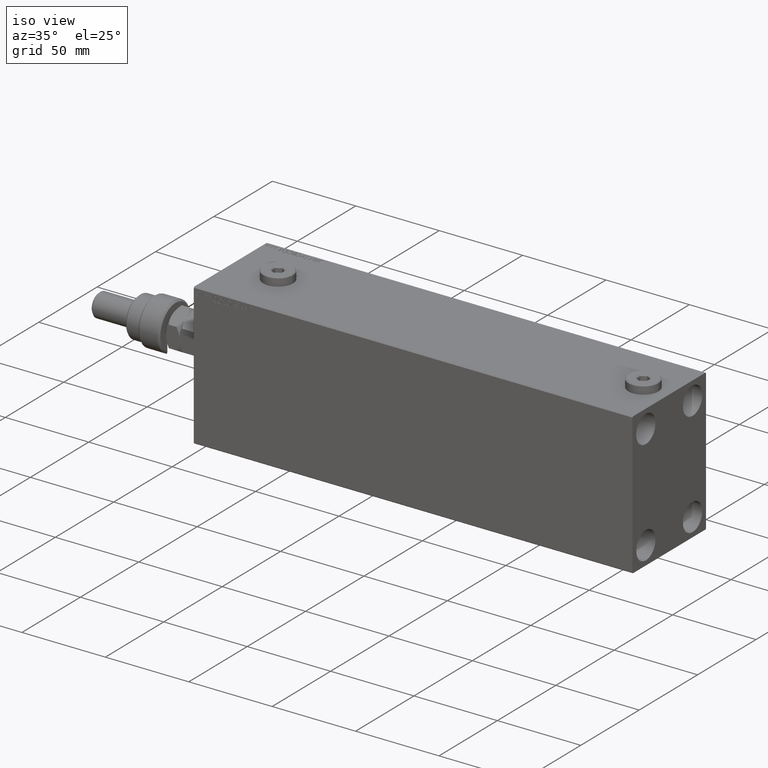
[diagram: clean part render]
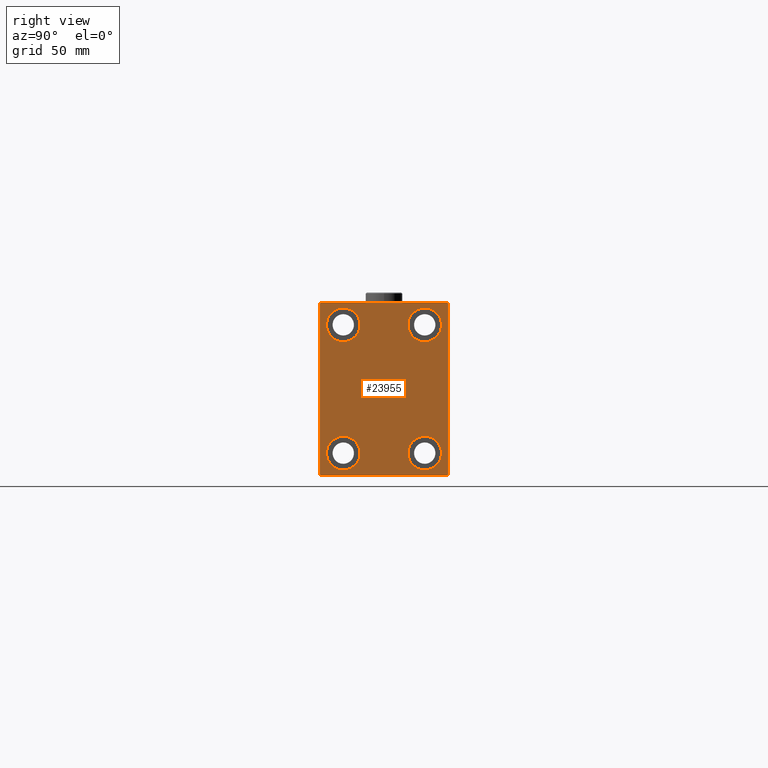
[diagram: tour spotlight — one face highlighted and labeled with its STEP entity id]
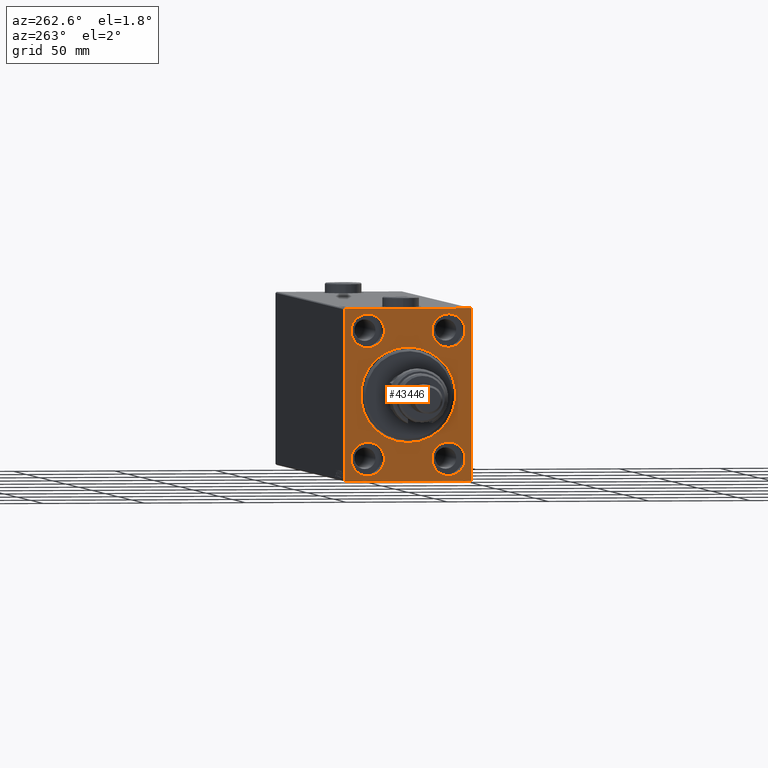
[diagram: tour spotlight — one face highlighted and labeled with its STEP entity id]
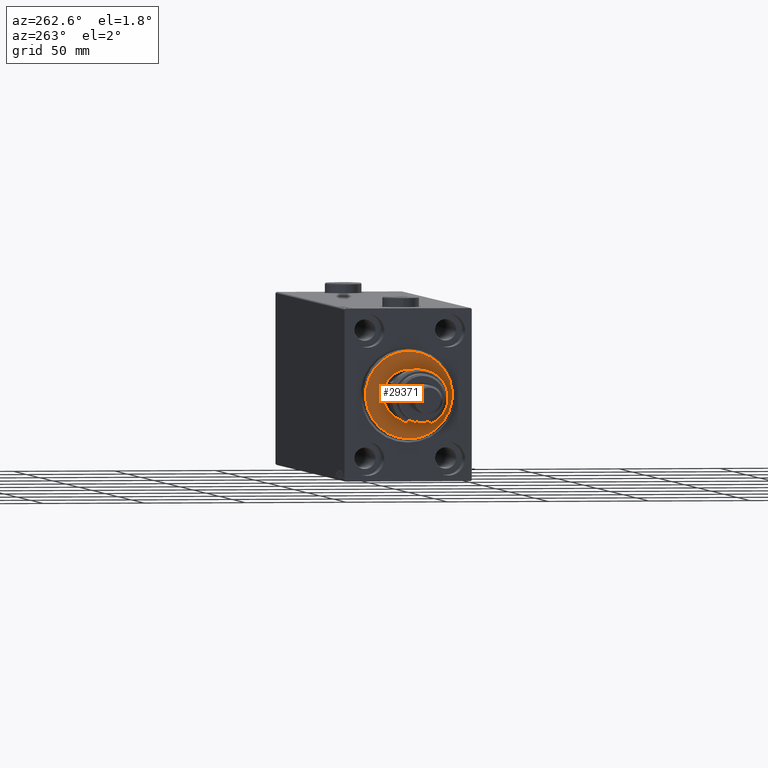
[diagram: tour spotlight — one face highlighted and labeled with its STEP entity id]
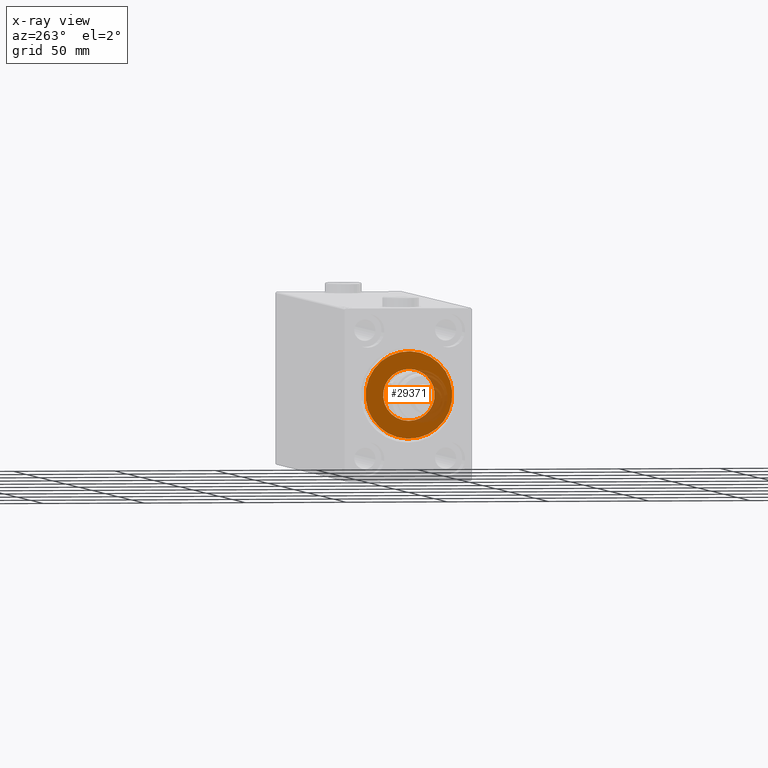
[diagram: x-ray of the same camera — body ghosted, this tour face saturated]
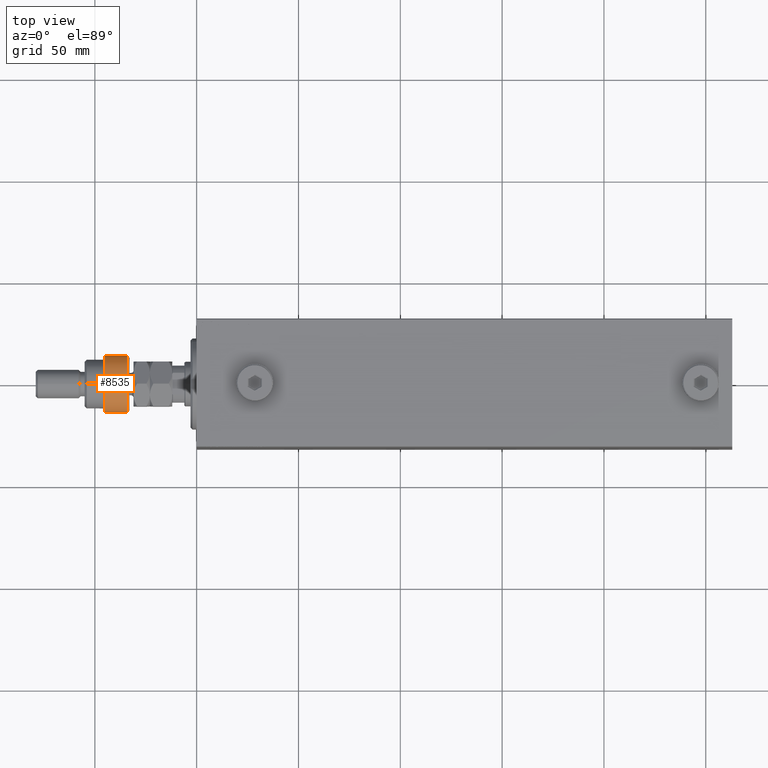
[diagram: tour spotlight — one face highlighted and labeled with its STEP entity id]
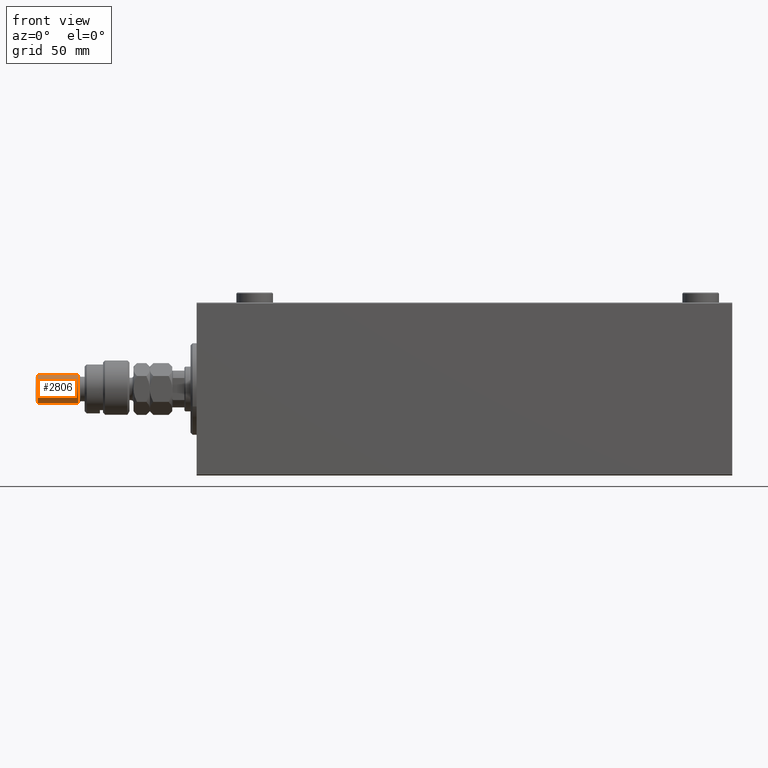
[diagram: tour spotlight — one face highlighted and labeled with its STEP entity id]
A machine part: a face-by-face anatomy tour. The part has 1001 B-rep faces; the first image is the clean iso view, then the 5 largest visible faces are spotlighted one at a time (largest first), each with its STEP entity span.

Face 1 — right view, entity #23955. In plain terms, the highlighted planar face has unit normal (1, 0, 0).
Definition (entity closure, byte-faithful):
#426 = CARTESIAN_POINT ( 'NONE',  ( 263.0000000000000000, 31.50000000000000000, 41.99999999999995737 ) ) ;
#983 = VERTEX_POINT ( 'NONE', #34597 ) ;
#1020 = CARTESIAN_POINT ( 'NONE',  ( 263.0000000000000000, -36.74999999999997868, 36.74999999999997868 ) ) ;
#1212 = EDGE_LOOP ( 'NONE', ( #25419, #22390, #8946, #7647, #27612, #31968, #35069, #8096 ) ) ;
#1508 = CARTESIAN_POINT ( 'NONE',  ( 263.0000000000000000, -19.99999999999999645, 39.74999999999999289 ) ) ;
#1774 = EDGE_CURVE ( 'NONE', #17631, #29334, #37343, .T. ) ;
#2107 = CIRCLE ( 'NONE', #46324, 8.250000000000000000 ) ;
#2212 = EDGE_CURVE ( 'NONE', #9146, #20336, #2107, .T. ) ;
#2669 = FACE_OUTER_BOUND ( 'NONE', #1212, .T. ) ;
#2895 = FACE_BOUND ( 'NONE', #35542, .T. ) ;
#3213 = VERTEX_POINT ( 'NONE', #17056 ) ;
#3452 = CARTESIAN_POINT ( 'NONE',  ( 263.0000000000000000, 36.74999999999910472, 36.75000000000114397 ) ) ;
#3723 = DIRECTION ( 'NONE',  ( 0.000000000000000000, 0.000000000000000000, 1.000000000000000000 ) ) ;
#7647 = ORIENTED_EDGE ( 'NONE', *, *, #31792, .T. ) ;
#8096 = ORIENTED_EDGE ( 'NONE', *, *, #17058, .T. ) ;
#8528 = DIRECTION ( 'NONE',  ( 0.000000000000000000, -0.7071067811865474617, -0.7071067811865474617 ) ) ;
#8946 = ORIENTED_EDGE ( 'NONE', *, *, #35526, .T. ) ;
#9146 = VERTEX_POINT ( 'NONE', #31957 ) ;
#9332 = DIRECTION ( 'NONE',  ( 0.000000000000000000, 0.000000000000000000, 1.000000000000000000 ) ) ;
#9524 = AXIS2_PLACEMENT_3D ( 'NONE', #29409, #22123, #32819 ) ;
#9651 = CARTESIAN_POINT ( 'NONE',  ( 263.0000000000000000, -19.99999999999999645, 23.25000000000000355 ) ) ;
#10174 = DIRECTION ( 'NONE',  ( 0.000000000000000000, 0.000000000000000000, -1.000000000000000000 ) ) ;
#10267 = DIRECTION ( 'NONE',  ( -0.000000000000000000, 0.7071067811865474617, -0.7071067811865474617 ) ) ;
#10368 = CIRCLE ( 'NONE', #37496, 8.250000000000000000 ) ;
#10537 = DIRECTION ( 'NONE',  ( -1.000000000000000000, -0.000000000000000000, -0.000000000000000000 ) ) ;
#10654 = DIRECTION ( 'NONE',  ( 1.000000000000000000, 0.000000000000000000, 0.000000000000000000 ) ) ;
#11142 = AXIS2_PLACEMENT_3D ( 'NONE', #47008, #39228, #17584 ) ;
#11256 = CARTESIAN_POINT ( 'NONE',  ( 263.0000000000000000, 31.50000000000000000, 42.50000000000000711 ) ) ;
#11830 = CIRCLE ( 'NONE', #9524, 8.250000000000000000 ) ;
#11898 = LINE ( 'NONE', #26707, #32967 ) ;
#11997 = EDGE_CURVE ( 'NONE', #20336, #9146, #10368, .T. ) ;
#12528 = VECTOR ( 'NONE', #33165, 1000.000000000000000 ) ;
#13317 = EDGE_CURVE ( 'NONE', #46708, #983, #47681, .T. ) ;
#13582 = FACE_BOUND ( 'NONE', #46640, .T. ) ;
#13658 = VECTOR ( 'NONE', #43212, 1000.000000000000000 ) ;
#13977 = VERTEX_POINT ( 'NONE', #17517 ) ;
#14176 = LINE ( 'NONE', #11256, #29211 ) ;
#14288 = FACE_BOUND ( 'NONE', #40293, .T. ) ;
#14528 = CARTESIAN_POINT ( 'NONE',  ( 263.0000000000000000, 20.00000000000000355, 23.25000000000000355 ) ) ;
#14598 = CARTESIAN_POINT ( 'NONE',  ( 263.0000000000000000, -30.99999999999997158, 42.49999999999999289 ) ) ;
#14660 = DIRECTION ( 'NONE',  ( 0.000000000000000000, -1.000000000000000000, -2.202823461557850341E-16 ) ) ;
#14907 = AXIS2_PLACEMENT_3D ( 'NONE', #21456, #43827, #3723 ) ;
#14926 = LINE ( 'NONE', #25617, #12528 ) ;
#14970 = ORIENTED_EDGE ( 'NONE', *, *, #43496, .T. ) ;
#15145 = EDGE_CURVE ( 'NONE', #29334, #30830, #11898, .T. ) ;
#15237 = DIRECTION ( 'NONE',  ( -0.000000000000000000, 0.7071067811865474617, 0.7071067811865474617 ) ) ;
#15331 = ORIENTED_EDGE ( 'NONE', *, *, #47267, .T. ) ;
#15737 = CARTESIAN_POINT ( 'NONE',  ( 263.0000000000000000, -20.00000000000000355, -31.49999999999999289 ) ) ;
#16152 = DIRECTION ( 'NONE',  ( 0.000000000000000000, 1.000000000000000000, 0.000000000000000000 ) ) ;
#16355 = DIRECTION ( 'NONE',  ( -1.000000000000000000, -0.000000000000000000, -0.000000000000000000 ) ) ;
#16540 = EDGE_CURVE ( 'NONE', #32261, #17631, #23445, .T. ) ;
#16963 = VERTEX_POINT ( 'NONE', #47668 ) ;
#17056 = CARTESIAN_POINT ( 'NONE',  ( 263.0000000000000000, -31.50000000000000000, -41.99999999999997868 ) ) ;
#17058 = EDGE_CURVE ( 'NONE', #30830, #13977, #36711, .T. ) ;
#17469 = FACE_BOUND ( 'NONE', #42993, .T. ) ;
#17517 = CARTESIAN_POINT ( 'NONE',  ( 263.0000000000000000, 30.99999999999991473, 42.50000000000000711 ) ) ;
#17584 = DIRECTION ( 'NONE',  ( 0.000000000000000000, 0.000000000000000000, 1.000000000000000000 ) ) ;
#17631 = VERTEX_POINT ( 'NONE', #46177 ) ;
#18427 = CIRCLE ( 'NONE', #39397, 8.250000000000000000 ) ;
#18524 = EDGE_CURVE ( 'NONE', #13977, #47546, #14176, .T. ) ;
#18885 = CARTESIAN_POINT ( 'NONE',  ( 263.0000000000000000, 36.74999999999999289, -36.74999999999999289 ) ) ;
#19897 = ORIENTED_EDGE ( 'NONE', *, *, #22242, .T. ) ;
#20292 = CARTESIAN_POINT ( 'NONE',  ( 263.0000000000000000, -31.50000000000000000, -42.50000000000000711 ) ) ;
#20336 = VERTEX_POINT ( 'NONE', #27640 ) ;
#21117 = PLANE ( 'NONE',  #27721 ) ;
#21456 = CARTESIAN_POINT ( 'NONE',  ( 263.0000000000000000, 20.00000000000000355, 31.50000000000000000 ) ) ;
#21675 = LINE ( 'NONE', #47682, #24080 ) ;
#21699 = ORIENTED_EDGE ( 'NONE', *, *, #13317, .T. ) ;
#22123 = DIRECTION ( 'NONE',  ( -1.000000000000000000, -0.000000000000000000, -0.000000000000000000 ) ) ;
#22242 = EDGE_CURVE ( 'NONE', #16963, #30138, #18427, .T. ) ;
#22390 = ORIENTED_EDGE ( 'NONE', *, *, #31846, .T. ) ;
#22878 = ORIENTED_EDGE ( 'NONE', *, *, #44688, .T. ) ;
#23445 = LINE ( 'NONE', #20292, #42346 ) ;
#23532 = DIRECTION ( 'NONE',  ( 0.000000000000000000, 0.000000000000000000, 1.000000000000000000 ) ) ;
#23791 = VECTOR ( 'NONE', #15237, 1000.000000000000114 ) ;
#23955 = ADVANCED_FACE ( 'NONE', ( #17469, #13582, #14288, #2895, #2669 ), #21117, .T. ) ;
#24080 = VECTOR ( 'NONE', #10267, 1000.000000000000114 ) ;
#24277 = VERTEX_POINT ( 'NONE', #9651 ) ;
#24389 = CARTESIAN_POINT ( 'NONE',  ( 263.0000000000000000, 19.99999999999999645, -31.49999999999999289 ) ) ;
#25419 = ORIENTED_EDGE ( 'NONE', *, *, #18524, .T. ) ;
#25617 = CARTESIAN_POINT ( 'NONE',  ( 263.0000000000000000, -31.50000000000000000, 42.49999999999999289 ) ) ;
#25953 = AXIS2_PLACEMENT_3D ( 'NONE', #34467, #42012, #23532 ) ;
#26466 = DIRECTION ( 'NONE',  ( 0.000000000000000000, -1.632680918566406300E-16, 1.000000000000000000 ) ) ;
#26707 = CARTESIAN_POINT ( 'NONE',  ( 263.0000000000000000, 31.50000000000001421, -42.50000000000000711 ) ) ;
#26780 = ORIENTED_EDGE ( 'NONE', *, *, #40908, .T. ) ;
#27612 = ORIENTED_EDGE ( 'NONE', *, *, #16540, .T. ) ;
#27640 = CARTESIAN_POINT ( 'NONE',  ( 263.0000000000000000, -20.00000000000000355, -39.74999999999999289 ) ) ;
#27721 = AXIS2_PLACEMENT_3D ( 'NONE', #46891, #10654, #10174 ) ;
#29211 = VECTOR ( 'NONE', #14660, 1000.000000000000000 ) ;
#29334 = VERTEX_POINT ( 'NONE', #40149 ) ;
#29409 = CARTESIAN_POINT ( 'NONE',  ( 263.0000000000000000, 19.99999999999999645, -31.49999999999999289 ) ) ;
#29921 = CARTESIAN_POINT ( 'NONE',  ( 263.0000000000000000, -31.50000000000000000, 41.99999999999996447 ) ) ;
#30138 = VERTEX_POINT ( 'NONE', #44272 ) ;
#30830 = VERTEX_POINT ( 'NONE', #426 ) ;
#31177 = VERTEX_POINT ( 'NONE', #1508 ) ;
#31792 = EDGE_CURVE ( 'NONE', #3213, #32261, #21675, .T. ) ;
#31846 = EDGE_CURVE ( 'NONE', #47546, #42777, #45481, .T. ) ;
#31917 = DIRECTION ( 'NONE',  ( 0.000000000000000000, 0.000000000000000000, 1.000000000000000000 ) ) ;
#31957 = CARTESIAN_POINT ( 'NONE',  ( 263.0000000000000000, -20.00000000000000355, -23.24999999999999289 ) ) ;
#31968 = ORIENTED_EDGE ( 'NONE', *, *, #1774, .T. ) ;
#32261 = VERTEX_POINT ( 'NONE', #35612 ) ;
#32819 = DIRECTION ( 'NONE',  ( 0.000000000000000000, 0.000000000000000000, 1.000000000000000000 ) ) ;
#32879 = CARTESIAN_POINT ( 'NONE',  ( 263.0000000000000000, -20.00000000000000355, -31.49999999999999289 ) ) ;
#32967 = VECTOR ( 'NONE', #26466, 1000.000000000000000 ) ;
#33165 = DIRECTION ( 'NONE',  ( 0.000000000000000000, 0.000000000000000000, -1.000000000000000000 ) ) ;
#34467 = CARTESIAN_POINT ( 'NONE',  ( 263.0000000000000000, 20.00000000000000355, 31.50000000000000000 ) ) ;
#34597 = CARTESIAN_POINT ( 'NONE',  ( 263.0000000000000000, 20.00000000000000355, 39.74999999999999289 ) ) ;
#34840 = DIRECTION ( 'NONE',  ( -1.000000000000000000, -0.000000000000000000, -0.000000000000000000 ) ) ;
#34944 = DIRECTION ( 'NONE',  ( -1.000000000000000000, -0.000000000000000000, -0.000000000000000000 ) ) ;
#35069 = ORIENTED_EDGE ( 'NONE', *, *, #15145, .T. ) ;
#35526 = EDGE_CURVE ( 'NONE', #42777, #3213, #14926, .T. ) ;
#35542 = EDGE_LOOP ( 'NONE', ( #35613, #40701 ) ) ;
#35612 = CARTESIAN_POINT ( 'NONE',  ( 263.0000000000000000, -30.99999999999997158, -42.50000000000000711 ) ) ;
#35613 = ORIENTED_EDGE ( 'NONE', *, *, #11997, .T. ) ;
#36711 = LINE ( 'NONE', #3452, #13658 ) ;
#37343 = LINE ( 'NONE', #18885, #23791 ) ;
#37379 = CIRCLE ( 'NONE', #14907, 8.249999999999992895 ) ;
#37424 = CIRCLE ( 'NONE', #47542, 8.249999999999992895 ) ;
#37496 = AXIS2_PLACEMENT_3D ( 'NONE', #15737, #34944, #41758 ) ;
#39228 = DIRECTION ( 'NONE',  ( -1.000000000000000000, -0.000000000000000000, -0.000000000000000000 ) ) ;
#39397 = AXIS2_PLACEMENT_3D ( 'NONE', #24389, #34840, #9332 ) ;
#40149 = CARTESIAN_POINT ( 'NONE',  ( 263.0000000000000000, 31.50000000000001421, -41.99999999999997868 ) ) ;
#40293 = EDGE_LOOP ( 'NONE', ( #21699, #14970 ) ) ;
#40701 = ORIENTED_EDGE ( 'NONE', *, *, #2212, .T. ) ;
#40908 = EDGE_CURVE ( 'NONE', #24277, #31177, #37424, .T. ) ;
#41758 = DIRECTION ( 'NONE',  ( 0.000000000000000000, 0.000000000000000000, 1.000000000000000000 ) ) ;
#41922 = VECTOR ( 'NONE', #8528, 1000.000000000000114 ) ;
#42012 = DIRECTION ( 'NONE',  ( -1.000000000000000000, -0.000000000000000000, -0.000000000000000000 ) ) ;
#42346 = VECTOR ( 'NONE', #16152, 1000.000000000000000 ) ;
#42626 = CARTESIAN_POINT ( 'NONE',  ( 263.0000000000000000, -19.99999999999999645, 31.50000000000000000 ) ) ;
#42777 = VERTEX_POINT ( 'NONE', #29921 ) ;
#42993 = EDGE_LOOP ( 'NONE', ( #19897, #22878 ) ) ;
#43212 = DIRECTION ( 'NONE',  ( -0.000000000000000000, -0.7071067811865671127, 0.7071067811865279218 ) ) ;
#43496 = EDGE_CURVE ( 'NONE', #983, #46708, #37379, .T. ) ;
#43827 = DIRECTION ( 'NONE',  ( -1.000000000000000000, -0.000000000000000000, -0.000000000000000000 ) ) ;
#44272 = CARTESIAN_POINT ( 'NONE',  ( 263.0000000000000000, 19.99999999999999645, -23.24999999999999289 ) ) ;
#44309 = DIRECTION ( 'NONE',  ( 0.000000000000000000, 0.000000000000000000, 1.000000000000000000 ) ) ;
#44688 = EDGE_CURVE ( 'NONE', #30138, #16963, #11830, .T. ) ;
#45481 = LINE ( 'NONE', #1020, #41922 ) ;
#46177 = CARTESIAN_POINT ( 'NONE',  ( 263.0000000000000000, 30.99999999999998579, -42.50000000000000711 ) ) ;
#46324 = AXIS2_PLACEMENT_3D ( 'NONE', #32879, #10537, #44309 ) ;
#46640 = EDGE_LOOP ( 'NONE', ( #26780, #15331 ) ) ;
#46708 = VERTEX_POINT ( 'NONE', #14528 ) ;
#46891 = CARTESIAN_POINT ( 'NONE',  ( 263.0000000000000000, 0.000000000000000000, 0.000000000000000000 ) ) ;
#47008 = CARTESIAN_POINT ( 'NONE',  ( 263.0000000000000000, -19.99999999999999645, 31.50000000000000000 ) ) ;
#47267 = EDGE_CURVE ( 'NONE', #31177, #24277, #47604, .T. ) ;
#47542 = AXIS2_PLACEMENT_3D ( 'NONE', #42626, #16355, #31917 ) ;
#47546 = VERTEX_POINT ( 'NONE', #14598 ) ;
#47604 = CIRCLE ( 'NONE', #11142, 8.249999999999992895 ) ;
#47668 = CARTESIAN_POINT ( 'NONE',  ( 263.0000000000000000, 19.99999999999999645, -39.74999999999999289 ) ) ;
#47681 = CIRCLE ( 'NONE', #25953, 8.249999999999992895 ) ;
#47682 = CARTESIAN_POINT ( 'NONE',  ( 263.0000000000000000, -36.74999999999998579, -36.74999999999998579 ) ) ;

Face 2 — auxiliary view, entity #43446. In plain terms, the highlighted planar face has unit normal (1, 0, 0).
Definition (entity closure, byte-faithful):
#216 = DIRECTION ( 'NONE',  ( -1.000000000000000000, 0.000000000000000000, 0.000000000000000000 ) ) ;
#728 = CARTESIAN_POINT ( 'NONE',  ( 0.000000000000000000, -30.99999999999997158, -42.50000000000000711 ) ) ;
#1513 = CARTESIAN_POINT ( 'NONE',  ( 0.000000000000000000, 31.50000000000000000, 41.99999999999995737 ) ) ;
#1584 = ORIENTED_EDGE ( 'NONE', *, *, #12823, .T. ) ;
#1821 = FACE_BOUND ( 'NONE', #41376, .T. ) ;
#2252 = DIRECTION ( 'NONE',  ( 0.000000000000000000, 0.000000000000000000, 1.000000000000000000 ) ) ;
#2683 = LINE ( 'NONE', #5605, #21486 ) ;
#2719 = CARTESIAN_POINT ( 'NONE',  ( 0.000000000000000000, 19.99999999999999645, -31.49999999999999289 ) ) ;
#2767 = CARTESIAN_POINT ( 'NONE',  ( 0.000000000000000000, -20.00000000000000355, -39.74999999999999289 ) ) ;
#2862 = VERTEX_POINT ( 'NONE', #18836 ) ;
#2901 = CARTESIAN_POINT ( 'NONE',  ( 0.000000000000000000, 19.99999999999999645, -23.24999999999999289 ) ) ;
#3364 = DIRECTION ( 'NONE',  ( 0.000000000000000000, 0.000000000000000000, 1.000000000000000000 ) ) ;
#3571 = DIRECTION ( 'NONE',  ( -1.000000000000000000, 0.000000000000000000, 0.000000000000000000 ) ) ;
#3731 = EDGE_LOOP ( 'NONE', ( #31922, #38038 ) ) ;
#3774 = ORIENTED_EDGE ( 'NONE', *, *, #9885, .T. ) ;
#4006 = DIRECTION ( 'NONE',  ( 1.000000000000000000, 0.000000000000000000, 0.000000000000000000 ) ) ;
#4101 = CIRCLE ( 'NONE', #21917, 8.249999999999992895 ) ;
#4424 = CARTESIAN_POINT ( 'NONE',  ( 0.000000000000000000, -31.50000000000000000, -42.50000000000000711 ) ) ;
#4563 = CARTESIAN_POINT ( 'NONE',  ( 0.000000000000000000, 20.00000000000000355, 31.50000000000000000 ) ) ;
#4576 = CARTESIAN_POINT ( 'NONE',  ( 0.000000000000000000, 19.99999999999999645, -39.74999999999999289 ) ) ;
#4686 = VERTEX_POINT ( 'NONE', #37662 ) ;
#5014 = ORIENTED_EDGE ( 'NONE', *, *, #15645, .T. ) ;
#5307 = DIRECTION ( 'NONE',  ( 0.000000000000000000, -0.7071067811865474617, -0.7071067811865474617 ) ) ;
#5342 = CIRCLE ( 'NONE', #20841, 8.249999999999992895 ) ;
#5540 = CARTESIAN_POINT ( 'NONE',  ( 0.000000000000000000, 31.50000000000001421, -41.99999999999997868 ) ) ;
#5558 = ORIENTED_EDGE ( 'NONE', *, *, #44305, .F. ) ;
#5605 = CARTESIAN_POINT ( 'NONE',  ( 0.000000000000000000, 31.50000000000000000, 42.50000000000000711 ) ) ;
#5695 = DIRECTION ( 'NONE',  ( 1.000000000000000000, 0.000000000000000000, 0.000000000000000000 ) ) ;
#5734 = DIRECTION ( 'NONE',  ( -1.000000000000000000, 0.000000000000000000, 0.000000000000000000 ) ) ;
#6175 = CARTESIAN_POINT ( 'NONE',  ( 0.000000000000000000, -19.99999999999999645, 31.50000000000000000 ) ) ;
#6279 = CARTESIAN_POINT ( 'NONE',  ( 0.000000000000000000, -31.50000000000000000, 41.99999999999996447 ) ) ;
#6343 = ORIENTED_EDGE ( 'NONE', *, *, #34982, .F. ) ;
#6480 = CARTESIAN_POINT ( 'NONE',  ( 0.000000000000000000, -20.00000000000000355, -23.24999999999999289 ) ) ;
#7588 = DIRECTION ( 'NONE',  ( 0.000000000000000000, 1.000000000000000000, 0.000000000000000000 ) ) ;
#7828 = CARTESIAN_POINT ( 'NONE',  ( 0.000000000000000000, 20.00000000000000355, 23.25000000000000355 ) ) ;
#8119 = DIRECTION ( 'NONE',  ( 0.000000000000000000, 0.000000000000000000, 1.000000000000000000 ) ) ;
#8304 = LINE ( 'NONE', #15570, #41186 ) ;
#8801 = CIRCLE ( 'NONE', #46845, 23.50000000000004619 ) ;
#8837 = CARTESIAN_POINT ( 'NONE',  ( 0.000000000000000000, -20.00000000000000355, -31.49999999999999289 ) ) ;
#8849 = FACE_BOUND ( 'NONE', #31256, .T. ) ;
#9000 = DIRECTION ( 'NONE',  ( 0.000000000000000000, -1.000000000000000000, -2.202823461557850341E-16 ) ) ;
#9159 = EDGE_CURVE ( 'NONE', #48012, #13699, #42248, .T. ) ;
#9235 = VERTEX_POINT ( 'NONE', #38439 ) ;
#9487 = AXIS2_PLACEMENT_3D ( 'NONE', #28024, #5695, #28272 ) ;
#9839 = CARTESIAN_POINT ( 'NONE',  ( 0.000000000000000000, -19.99999999999999645, 39.74999999999999289 ) ) ;
#9885 = EDGE_CURVE ( 'NONE', #9235, #26216, #8801, .T. ) ;
#9955 = CARTESIAN_POINT ( 'NONE',  ( 0.000000000000000000, -31.50000000000000000, 41.99999999999996447 ) ) ;
#10266 = ORIENTED_EDGE ( 'NONE', *, *, #46633, .F. ) ;
#11021 = EDGE_CURVE ( 'NONE', #19180, #40441, #42959, .T. ) ;
#11852 = CARTESIAN_POINT ( 'NONE',  ( 0.000000000000000000, 0.000000000000000000, 0.000000000000000000 ) ) ;
#11951 = AXIS2_PLACEMENT_3D ( 'NONE', #35117, #5734, #39496 ) ;
#12823 = EDGE_CURVE ( 'NONE', #36977, #33989, #24129, .T. ) ;
#12971 = CARTESIAN_POINT ( 'NONE',  ( 0.000000000000000000, 30.99999999999991473, 42.50000000000000711 ) ) ;
#13446 = DIRECTION ( 'NONE',  ( -1.000000000000000000, 0.000000000000000000, 0.000000000000000000 ) ) ;
#13699 = VERTEX_POINT ( 'NONE', #2767 ) ;
#14346 = CARTESIAN_POINT ( 'NONE',  ( 0.000000000000000000, -31.50000000000000000, -41.99999999999997868 ) ) ;
#14725 = DIRECTION ( 'NONE',  ( 0.000000000000000000, 0.000000000000000000, 1.000000000000000000 ) ) ;
#14786 = LINE ( 'NONE', #28894, #44207 ) ;
#14879 = AXIS2_PLACEMENT_3D ( 'NONE', #8837, #27040, #8119 ) ;
#15554 = VECTOR ( 'NONE', #7588, 1000.000000000000000 ) ;
#15570 = CARTESIAN_POINT ( 'NONE',  ( 0.000000000000000000, 30.99999999999991473, 42.50000000000000711 ) ) ;
#15645 = EDGE_CURVE ( 'NONE', #4686, #45926, #23991, .T. ) ;
#15701 = CARTESIAN_POINT ( 'NONE',  ( 0.000000000000000000, 30.99999999999998579, -42.50000000000000711 ) ) ;
#18609 = CARTESIAN_POINT ( 'NONE',  ( 0.000000000000000000, -19.99999999999999645, 31.50000000000000000 ) ) ;
#18659 = DIRECTION ( 'NONE',  ( 1.000000000000000000, 0.000000000000000000, 0.000000000000000000 ) ) ;
#18812 = DIRECTION ( 'NONE',  ( 0.000000000000000000, 0.000000000000000000, -1.000000000000000000 ) ) ;
#18836 = CARTESIAN_POINT ( 'NONE',  ( 0.000000000000000000, 20.00000000000000355, 39.74999999999999289 ) ) ;
#19180 = VERTEX_POINT ( 'NONE', #9839 ) ;
#19416 = DIRECTION ( 'NONE',  ( -1.000000000000000000, 0.000000000000000000, 0.000000000000000000 ) ) ;
#19438 = EDGE_LOOP ( 'NONE', ( #10266, #5558 ) ) ;
#19994 = EDGE_CURVE ( 'NONE', #22207, #42794, #2683, .T. ) ;
#20213 = VERTEX_POINT ( 'NONE', #4576 ) ;
#20726 = EDGE_CURVE ( 'NONE', #24749, #42794, #39562, .T. ) ;
#20841 = AXIS2_PLACEMENT_3D ( 'NONE', #6175, #13446, #35559 ) ;
#21135 = CIRCLE ( 'NONE', #36626, 23.50000000000004619 ) ;
#21313 = ORIENTED_EDGE ( 'NONE', *, *, #20726, .T. ) ;
#21486 = VECTOR ( 'NONE', #9000, 1000.000000000000000 ) ;
#21917 = AXIS2_PLACEMENT_3D ( 'NONE', #4563, #216, #44427 ) ;
#22207 = VERTEX_POINT ( 'NONE', #12971 ) ;
#22458 = CARTESIAN_POINT ( 'NONE',  ( 0.000000000000000000, 31.50000000000001421, -42.50000000000000711 ) ) ;
#22461 = CARTESIAN_POINT ( 'NONE',  ( 0.000000000000000000, 0.000000000000000000, 0.000000000000000000 ) ) ;
#23078 = VECTOR ( 'NONE', #34706, 1000.000000000000114 ) ;
#23407 = AXIS2_PLACEMENT_3D ( 'NONE', #30594, #19416, #23545 ) ;
#23545 = DIRECTION ( 'NONE',  ( 0.000000000000000000, 0.000000000000000000, 1.000000000000000000 ) ) ;
#23991 = LINE ( 'NONE', #5540, #38410 ) ;
#24129 = LINE ( 'NONE', #37978, #43022 ) ;
#24749 = VERTEX_POINT ( 'NONE', #9955 ) ;
#24769 = VERTEX_POINT ( 'NONE', #2901 ) ;
#26216 = VERTEX_POINT ( 'NONE', #26622 ) ;
#26622 = CARTESIAN_POINT ( 'NONE',  ( 0.000000000000000000, 0.000000000000000000, 23.50000000000004619 ) ) ;
#27040 = DIRECTION ( 'NONE',  ( -1.000000000000000000, 0.000000000000000000, 0.000000000000000000 ) ) ;
#27296 = FACE_BOUND ( 'NONE', #3731, .T. ) ;
#27326 = EDGE_CURVE ( 'NONE', #40441, #19180, #5342, .T. ) ;
#28024 = CARTESIAN_POINT ( 'NONE',  ( 0.000000000000000000, 0.000000000000000000, 0.000000000000000000 ) ) ;
#28272 = DIRECTION ( 'NONE',  ( 0.000000000000000000, 0.000000000000000000, -1.000000000000000000 ) ) ;
#28826 = CIRCLE ( 'NONE', #23407, 8.250000000000000000 ) ;
#28894 = CARTESIAN_POINT ( 'NONE',  ( 0.000000000000000000, -31.50000000000000000, 42.49999999999999289 ) ) ;
#29096 = DIRECTION ( 'NONE',  ( -1.000000000000000000, 0.000000000000000000, 0.000000000000000000 ) ) ;
#30337 = EDGE_CURVE ( 'NONE', #24749, #33989, #14786, .T. ) ;
#30594 = CARTESIAN_POINT ( 'NONE',  ( 0.000000000000000000, 19.99999999999999645, -31.49999999999999289 ) ) ;
#30832 = EDGE_LOOP ( 'NONE', ( #41978, #3774 ) ) ;
#30888 = DIRECTION ( 'NONE',  ( -0.000000000000000000, 0.7071067811865671127, -0.7071067811865279218 ) ) ;
#31213 = ORIENTED_EDGE ( 'NONE', *, *, #32839, .T. ) ;
#31256 = EDGE_LOOP ( 'NONE', ( #31477, #42869 ) ) ;
#31477 = ORIENTED_EDGE ( 'NONE', *, *, #11021, .F. ) ;
#31922 = ORIENTED_EDGE ( 'NONE', *, *, #36236, .F. ) ;
#32811 = ORIENTED_EDGE ( 'NONE', *, *, #32904, .F. ) ;
#32839 = EDGE_CURVE ( 'NONE', #22207, #45413, #8304, .T. ) ;
#32904 = EDGE_CURVE ( 'NONE', #36977, #45926, #34282, .T. ) ;
#33475 = CIRCLE ( 'NONE', #14879, 8.250000000000000000 ) ;
#33989 = VERTEX_POINT ( 'NONE', #14346 ) ;
#34256 = AXIS2_PLACEMENT_3D ( 'NONE', #2719, #35508, #2252 ) ;
#34282 = LINE ( 'NONE', #4424, #15554 ) ;
#34706 = DIRECTION ( 'NONE',  ( -0.000000000000000000, 0.7071067811865474617, 0.7071067811865474617 ) ) ;
#34982 = EDGE_CURVE ( 'NONE', #13699, #48012, #33475, .T. ) ;
#35077 = FACE_BOUND ( 'NONE', #19438, .T. ) ;
#35117 = CARTESIAN_POINT ( 'NONE',  ( 0.000000000000000000, -20.00000000000000355, -31.49999999999999289 ) ) ;
#35508 = DIRECTION ( 'NONE',  ( -1.000000000000000000, 0.000000000000000000, 0.000000000000000000 ) ) ;
#35559 = DIRECTION ( 'NONE',  ( 0.000000000000000000, 0.000000000000000000, 1.000000000000000000 ) ) ;
#35699 = ORIENTED_EDGE ( 'NONE', *, *, #30337, .F. ) ;
#36018 = EDGE_CURVE ( 'NONE', #20213, #24769, #46724, .T. ) ;
#36236 = EDGE_CURVE ( 'NONE', #24769, #20213, #28826, .T. ) ;
#36550 = VECTOR ( 'NONE', #37268, 1000.000000000000000 ) ;
#36626 = AXIS2_PLACEMENT_3D ( 'NONE', #22461, #4006, #18812 ) ;
#36977 = VERTEX_POINT ( 'NONE', #728 ) ;
#37126 = DIRECTION ( 'NONE',  ( 0.000000000000000000, 0.000000000000000000, -1.000000000000000000 ) ) ;
#37268 = DIRECTION ( 'NONE',  ( 0.000000000000000000, -1.632680918566406300E-16, 1.000000000000000000 ) ) ;
#37536 = EDGE_CURVE ( 'NONE', #4686, #45413, #40700, .T. ) ;
#37662 = CARTESIAN_POINT ( 'NONE',  ( 0.000000000000000000, 31.50000000000001421, -41.99999999999997868 ) ) ;
#37978 = CARTESIAN_POINT ( 'NONE',  ( 0.000000000000000000, -30.99999999999997158, -42.50000000000000711 ) ) ;
#38038 = ORIENTED_EDGE ( 'NONE', *, *, #36018, .F. ) ;
#38295 = AXIS2_PLACEMENT_3D ( 'NONE', #46648, #29096, #3364 ) ;
#38300 = CARTESIAN_POINT ( 'NONE',  ( 0.000000000000000000, -19.99999999999999645, 23.25000000000000355 ) ) ;
#38410 = VECTOR ( 'NONE', #5307, 1000.000000000000114 ) ;
#38416 = CARTESIAN_POINT ( 'NONE',  ( 0.000000000000000000, -30.99999999999997158, 42.49999999999999289 ) ) ;
#38439 = CARTESIAN_POINT ( 'NONE',  ( 0.000000000000000000, 2.877919977996285448E-15, -23.50000000000004619 ) ) ;
#38483 = FACE_BOUND ( 'NONE', #30832, .T. ) ;
#38949 = DIRECTION ( 'NONE',  ( -0.000000000000000000, -0.7071067811865474617, 0.7071067811865474617 ) ) ;
#38963 = PLANE ( 'NONE',  #9487 ) ;
#39496 = DIRECTION ( 'NONE',  ( 0.000000000000000000, 0.000000000000000000, 1.000000000000000000 ) ) ;
#39562 = LINE ( 'NONE', #6279, #23078 ) ;
#39894 = AXIS2_PLACEMENT_3D ( 'NONE', #18609, #3571, #14725 ) ;
#40441 = VERTEX_POINT ( 'NONE', #38300 ) ;
#40561 = DIRECTION ( 'NONE',  ( 0.000000000000000000, 0.000000000000000000, -1.000000000000000000 ) ) ;
#40700 = LINE ( 'NONE', #22458, #36550 ) ;
#40817 = EDGE_CURVE ( 'NONE', #26216, #9235, #21135, .T. ) ;
#41186 = VECTOR ( 'NONE', #30888, 1000.000000000000000 ) ;
#41274 = VERTEX_POINT ( 'NONE', #7828 ) ;
#41376 = EDGE_LOOP ( 'NONE', ( #43916, #6343 ) ) ;
#41698 = ORIENTED_EDGE ( 'NONE', *, *, #37536, .F. ) ;
#41978 = ORIENTED_EDGE ( 'NONE', *, *, #40817, .T. ) ;
#42248 = CIRCLE ( 'NONE', #11951, 8.250000000000000000 ) ;
#42630 = FACE_OUTER_BOUND ( 'NONE', #47456, .T. ) ;
#42794 = VERTEX_POINT ( 'NONE', #38416 ) ;
#42869 = ORIENTED_EDGE ( 'NONE', *, *, #27326, .F. ) ;
#42959 = CIRCLE ( 'NONE', #39894, 8.249999999999992895 ) ;
#43022 = VECTOR ( 'NONE', #38949, 1000.000000000000114 ) ;
#43446 = ADVANCED_FACE ( 'NONE', ( #38483, #27296, #8849, #35077, #1821, #42630 ), #38963, .F. ) ;
#43916 = ORIENTED_EDGE ( 'NONE', *, *, #9159, .F. ) ;
#44207 = VECTOR ( 'NONE', #40561, 1000.000000000000000 ) ;
#44305 = EDGE_CURVE ( 'NONE', #41274, #2862, #4101, .T. ) ;
#44427 = DIRECTION ( 'NONE',  ( 0.000000000000000000, 0.000000000000000000, 1.000000000000000000 ) ) ;
#44515 = CIRCLE ( 'NONE', #38295, 8.249999999999992895 ) ;
#44995 = ORIENTED_EDGE ( 'NONE', *, *, #19994, .F. ) ;
#45413 = VERTEX_POINT ( 'NONE', #1513 ) ;
#45926 = VERTEX_POINT ( 'NONE', #15701 ) ;
#46633 = EDGE_CURVE ( 'NONE', #2862, #41274, #44515, .T. ) ;
#46648 = CARTESIAN_POINT ( 'NONE',  ( 0.000000000000000000, 20.00000000000000355, 31.50000000000000000 ) ) ;
#46724 = CIRCLE ( 'NONE', #34256, 8.250000000000000000 ) ;
#46845 = AXIS2_PLACEMENT_3D ( 'NONE', #11852, #18659, #37126 ) ;
#47456 = EDGE_LOOP ( 'NONE', ( #35699, #21313, #44995, #31213, #41698, #5014, #32811, #1584 ) ) ;
#48012 = VERTEX_POINT ( 'NONE', #6480 ) ;

Face 3 — auxiliary view, entity #29371. An x-ray twin of the same camera follows (body ghosted, this face saturated) — the face is partly hidden behind the body. In plain terms, the highlighted planar face has unit normal (-1, 0, 0).
Definition (entity closure, byte-faithful):
#724 = AXIS2_PLACEMENT_3D ( 'NONE', #1007, #44985, #22609 ) ;
#817 = CARTESIAN_POINT ( 'NONE',  ( 3.000000000000000000, 0.000000000000000000, 0.000000000000000000 ) ) ;
#1007 = CARTESIAN_POINT ( 'NONE',  ( 3.000000000000000000, 0.000000000000000000, 0.000000000000000000 ) ) ;
#1100 = CIRCLE ( 'NONE', #39909, 21.50000000000000355 ) ;
#1451 = VERTEX_POINT ( 'NONE', #22296 ) ;
#1543 = DIRECTION ( 'NONE',  ( 0.000000000000000000, 0.000000000000000000, -1.000000000000000000 ) ) ;
#3343 = CIRCLE ( 'NONE', #37484, 12.75000000000000000 ) ;
#3693 = FACE_BOUND ( 'NONE', #4051, .T. ) ;
#4051 = EDGE_LOOP ( 'NONE', ( #33060, #21389 ) ) ;
#5289 = DIRECTION ( 'NONE',  ( -1.000000000000000000, 0.000000000000000000, -0.000000000000000000 ) ) ;
#5405 = VERTEX_POINT ( 'NONE', #10034 ) ;
#5513 = DIRECTION ( 'NONE',  ( 0.000000000000000000, 0.000000000000000000, -1.000000000000000000 ) ) ;
#7134 = EDGE_CURVE ( 'NONE', #17403, #21570, #12687, .T. ) ;
#8290 = EDGE_LOOP ( 'NONE', ( #43949, #27978 ) ) ;
#8919 = CARTESIAN_POINT ( 'NONE',  ( 3.000000000000000000, 0.000000000000000000, 0.000000000000000000 ) ) ;
#10034 = CARTESIAN_POINT ( 'NONE',  ( 3.000000000000000000, 0.000000000000000000, 21.50000000000000355 ) ) ;
#11449 = PLANE ( 'NONE',  #724 ) ;
#12687 = CIRCLE ( 'NONE', #16566, 12.75000000000000000 ) ;
#13264 = AXIS2_PLACEMENT_3D ( 'NONE', #31978, #32451, #5513 ) ;
#15467 = DIRECTION ( 'NONE',  ( 0.000000000000000000, 0.000000000000000000, -1.000000000000000000 ) ) ;
#15558 = CIRCLE ( 'NONE', #13264, 21.50000000000000355 ) ;
#16566 = AXIS2_PLACEMENT_3D ( 'NONE', #817, #34802, #1543 ) ;
#17403 = VERTEX_POINT ( 'NONE', #20299 ) ;
#20299 = CARTESIAN_POINT ( 'NONE',  ( 3.000000000000000000, 0.000000000000000000, 12.75000000000000000 ) ) ;
#21389 = ORIENTED_EDGE ( 'NONE', *, *, #45910, .T. ) ;
#21570 = VERTEX_POINT ( 'NONE', #26033 ) ;
#22296 = CARTESIAN_POINT ( 'NONE',  ( 3.000000000000000000, 2.694222958124177598E-15, -21.50000000000000355 ) ) ;
#22609 = DIRECTION ( 'NONE',  ( 0.000000000000000000, 0.000000000000000000, -1.000000000000000000 ) ) ;
#22998 = CARTESIAN_POINT ( 'NONE',  ( 3.000000000000000000, 0.000000000000000000, 0.000000000000000000 ) ) ;
#23477 = DIRECTION ( 'NONE',  ( 0.000000000000000000, 0.000000000000000000, -1.000000000000000000 ) ) ;
#23733 = DIRECTION ( 'NONE',  ( 1.000000000000000000, -0.000000000000000000, 0.000000000000000000 ) ) ;
#26033 = CARTESIAN_POINT ( 'NONE',  ( 3.000000000000000000, 1.561424668912874914E-15, -12.75000000000000000 ) ) ;
#27978 = ORIENTED_EDGE ( 'NONE', *, *, #47803, .T. ) ;
#29371 = ADVANCED_FACE ( 'NONE', ( #36953, #3693 ), #11449, .T. ) ;
#31978 = CARTESIAN_POINT ( 'NONE',  ( 3.000000000000000000, 0.000000000000000000, 0.000000000000000000 ) ) ;
#32451 = DIRECTION ( 'NONE',  ( 1.000000000000000000, -0.000000000000000000, 0.000000000000000000 ) ) ;
#33060 = ORIENTED_EDGE ( 'NONE', *, *, #7134, .T. ) ;
#34802 = DIRECTION ( 'NONE',  ( -1.000000000000000000, 0.000000000000000000, -0.000000000000000000 ) ) ;
#36953 = FACE_OUTER_BOUND ( 'NONE', #8290, .T. ) ;
#37421 = EDGE_CURVE ( 'NONE', #5405, #1451, #15558, .T. ) ;
#37484 = AXIS2_PLACEMENT_3D ( 'NONE', #22998, #5289, #23477 ) ;
#39909 = AXIS2_PLACEMENT_3D ( 'NONE', #8919, #23733, #15467 ) ;
#43949 = ORIENTED_EDGE ( 'NONE', *, *, #37421, .T. ) ;
#44985 = DIRECTION ( 'NONE',  ( 1.000000000000000000, -0.000000000000000000, 0.000000000000000000 ) ) ;
#45910 = EDGE_CURVE ( 'NONE', #21570, #17403, #3343, .T. ) ;
#47803 = EDGE_CURVE ( 'NONE', #1451, #5405, #1100, .T. ) ;

Face 4 — top view, entity #8535. In plain terms, the highlighted cylindrical surface (edge-blend (fillet) strip) has radius 14 mm, axis along (1, -0, -0).
Definition (entity closure, byte-faithful):
#2365 = AXIS2_PLACEMENT_3D ( 'NONE', #7938, #12295, #37554 ) ;
#5300 = DIRECTION ( 'NONE',  ( 1.000000000000000000, 0.000000000000000000, 0.000000000000000000 ) ) ;
#6183 = VERTEX_POINT ( 'NONE', #42079 ) ;
#7269 = DIRECTION ( 'NONE',  ( -1.000000000000000000, 0.000000000000000000, 0.000000000000000000 ) ) ;
#7683 = CARTESIAN_POINT ( 'NONE',  ( -12.64911064067351809, -5.999999999999999112, 12.00000000000003553 ) ) ;
#7938 = CARTESIAN_POINT ( 'NONE',  ( 0.000000000000000000, 0.000000000000000000, 1.000000000000032196 ) ) ;
#8535 = ADVANCED_FACE ( 'NONE', ( #25710 ), #29843, .T. ) ;
#10084 = ORIENTED_EDGE ( 'NONE', *, *, #14525, .F. ) ;
#10215 = VERTEX_POINT ( 'NONE', #7683 ) ;
#10403 = ORIENTED_EDGE ( 'NONE', *, *, #44380, .T. ) ;
#10465 = VECTOR ( 'NONE', #42943, 1000.000000000000000 ) ;
#11909 = CARTESIAN_POINT ( 'NONE',  ( -12.64911064067351809, -5.999999999999999112, 14.50000000000000000 ) ) ;
#12295 = DIRECTION ( 'NONE',  ( -0.000000000000000000, -0.000000000000000000, 1.000000000000000000 ) ) ;
#13655 = EDGE_CURVE ( 'NONE', #27333, #10215, #26712, .T. ) ;
#14307 = DIRECTION ( 'NONE',  ( -0.000000000000000000, -0.000000000000000000, -1.000000000000000000 ) ) ;
#14398 = DIRECTION ( 'NONE',  ( 1.000000000000000000, 0.000000000000000000, 0.000000000000000000 ) ) ;
#14525 = EDGE_CURVE ( 'NONE', #27333, #21652, #46834, .T. ) ;
#17286 = AXIS2_PLACEMENT_3D ( 'NONE', #24641, #38562, #5300 ) ;
#18425 = VECTOR ( 'NONE', #37898, 1000.000000000000000 ) ;
#19221 = CARTESIAN_POINT ( 'NONE',  ( -12.64911064067351809, 6.000000000000000000, 1.000000000000035527 ) ) ;
#20504 = CARTESIAN_POINT ( 'NONE',  ( -12.64911064067351809, 6.000000000000000000, 12.00000000000003553 ) ) ;
#21273 = ORIENTED_EDGE ( 'NONE', *, *, #30802, .T. ) ;
#21652 = VERTEX_POINT ( 'NONE', #19221 ) ;
#22487 = CIRCLE ( 'NONE', #2365, 14.00000000000000000 ) ;
#24641 = CARTESIAN_POINT ( 'NONE',  ( 0.000000000000000000, 0.000000000000000000, 1.000000000000032196 ) ) ;
#25710 = FACE_OUTER_BOUND ( 'NONE', #40461, .T. ) ;
#25752 = EDGE_CURVE ( 'NONE', #10215, #34923, #41563, .T. ) ;
#26712 = CIRCLE ( 'NONE', #38382, 14.00000000000000000 ) ;
#27333 = VERTEX_POINT ( 'NONE', #20504 ) ;
#28508 = CARTESIAN_POINT ( 'NONE',  ( 0.000000000000000000, 0.000000000000000000, 12.00000000000003553 ) ) ;
#29843 = CYLINDRICAL_SURFACE ( 'NONE', #37542, 14.00000000000000000 ) ;
#30802 = EDGE_CURVE ( 'NONE', #34923, #6183, #22487, .T. ) ;
#34923 = VERTEX_POINT ( 'NONE', #37504 ) ;
#37504 = CARTESIAN_POINT ( 'NONE',  ( -12.64911064067351809, -5.999999999999999112, 1.000000000000035527 ) ) ;
#37542 = AXIS2_PLACEMENT_3D ( 'NONE', #47610, #14307, #7269 ) ;
#37554 = DIRECTION ( 'NONE',  ( 1.000000000000000000, 0.000000000000000000, 0.000000000000000000 ) ) ;
#37682 = ORIENTED_EDGE ( 'NONE', *, *, #25752, .T. ) ;
#37898 = DIRECTION ( 'NONE',  ( -0.000000000000000000, -0.000000000000000000, -1.000000000000000000 ) ) ;
#38382 = AXIS2_PLACEMENT_3D ( 'NONE', #28508, #46991, #14398 ) ;
#38562 = DIRECTION ( 'NONE',  ( -0.000000000000000000, -0.000000000000000000, 1.000000000000000000 ) ) ;
#40461 = EDGE_LOOP ( 'NONE', ( #10084, #44931, #37682, #21273, #10403 ) ) ;
#41321 = CIRCLE ( 'NONE', #17286, 14.00000000000000000 ) ;
#41563 = LINE ( 'NONE', #11909, #18425 ) ;
#42079 = CARTESIAN_POINT ( 'NONE',  ( 14.00000000000000000, 0.000000000000000000, 1.000000000000032196 ) ) ;
#42943 = DIRECTION ( 'NONE',  ( -0.000000000000000000, -0.000000000000000000, -1.000000000000000000 ) ) ;
#44380 = EDGE_CURVE ( 'NONE', #6183, #21652, #41321, .T. ) ;
#44931 = ORIENTED_EDGE ( 'NONE', *, *, #13655, .T. ) ;
#46834 = LINE ( 'NONE', #47298, #10465 ) ;
#46991 = DIRECTION ( 'NONE',  ( 0.000000000000000000, 0.000000000000000000, -1.000000000000000000 ) ) ;
#47298 = CARTESIAN_POINT ( 'NONE',  ( -12.64911064067351809, 6.000000000000000000, 14.50000000000000000 ) ) ;
#47610 = CARTESIAN_POINT ( 'NONE',  ( 0.000000000000000000, 0.000000000000000000, 13.00000000000000000 ) ) ;

Face 5 — front view, entity #2806. In plain terms, the highlighted cylindrical surface (edge-blend (fillet) strip) has radius 7 mm, axis along (1, -0, -0).
Definition (entity closure, byte-faithful):
#407 = DIRECTION ( 'NONE',  ( -1.000000000000000000, 0.000000000000000000, 0.000000000000000000 ) ) ;
#2025 = EDGE_LOOP ( 'NONE', ( #21151, #7900, #15887, #10662 ) ) ;
#2493 = CARTESIAN_POINT ( 'NONE',  ( 7.000000000000000000, 8.572527594031473190E-16, 44.99999999999999289 ) ) ;
#2806 = ADVANCED_FACE ( 'NONE', ( #34370 ), #26837, .T. ) ;
#3103 = CIRCLE ( 'NONE', #30245, 7.000000000000000000 ) ;
#4348 = DIRECTION ( 'NONE',  ( 0.000000000000000000, 0.000000000000000000, -1.000000000000000000 ) ) ;
#4828 = CARTESIAN_POINT ( 'NONE',  ( 0.000000000000000000, 0.000000000000000000, 44.99999999999999289 ) ) ;
#5544 = DIRECTION ( 'NONE',  ( -0.000000000000000000, -0.000000000000000000, -1.000000000000000000 ) ) ;
#6261 = EDGE_CURVE ( 'NONE', #15946, #46558, #35943, .T. ) ;
#6673 = AXIS2_PLACEMENT_3D ( 'NONE', #15188, #12028, #407 ) ;
#7900 = ORIENTED_EDGE ( 'NONE', *, *, #30470, .T. ) ;
#9270 = DIRECTION ( 'NONE',  ( -0.000000000000000000, -0.000000000000000000, 1.000000000000000000 ) ) ;
#9419 = LINE ( 'NONE', #38572, #43298 ) ;
#10662 = ORIENTED_EDGE ( 'NONE', *, *, #6261, .T. ) ;
#11199 = CARTESIAN_POINT ( 'NONE',  ( -7.000000000000000000, 0.000000000000000000, 24.99999999999998934 ) ) ;
#12028 = DIRECTION ( 'NONE',  ( -0.000000000000000000, -0.000000000000000000, -1.000000000000000000 ) ) ;
#15188 = CARTESIAN_POINT ( 'NONE',  ( 0.000000000000000000, 0.000000000000000000, 46.00000000000000000 ) ) ;
#15887 = ORIENTED_EDGE ( 'NONE', *, *, #24887, .T. ) ;
#15946 = VERTEX_POINT ( 'NONE', #11199 ) ;
#16542 = DIRECTION ( 'NONE',  ( 1.000000000000000000, 0.000000000000000000, 0.000000000000000000 ) ) ;
#19853 = CARTESIAN_POINT ( 'NONE',  ( -7.000000000000000000, 0.000000000000000000, 44.99999999999999289 ) ) ;
#20640 = CARTESIAN_POINT ( 'NONE',  ( 7.000000000000000000, 8.572527594031473190E-16, 24.99999999999998934 ) ) ;
#21151 = ORIENTED_EDGE ( 'NONE', *, *, #40748, .F. ) ;
#24887 = EDGE_CURVE ( 'NONE', #33514, #15946, #9419, .T. ) ;
#25860 = CARTESIAN_POINT ( 'NONE',  ( 7.000000000000000000, 8.572527594031473190E-16, 46.00000000000000000 ) ) ;
#26675 = DIRECTION ( 'NONE',  ( 1.000000000000000000, 0.000000000000000000, 0.000000000000000000 ) ) ;
#26837 = CYLINDRICAL_SURFACE ( 'NONE', #6673, 7.000000000000000000 ) ;
#30245 = AXIS2_PLACEMENT_3D ( 'NONE', #4828, #4348, #26675 ) ;
#30470 = EDGE_CURVE ( 'NONE', #47463, #33514, #3103, .T. ) ;
#32100 = CARTESIAN_POINT ( 'NONE',  ( 0.000000000000000000, 0.000000000000000000, 24.99999999999998934 ) ) ;
#33161 = LINE ( 'NONE', #25860, #39781 ) ;
#33514 = VERTEX_POINT ( 'NONE', #19853 ) ;
#34370 = FACE_OUTER_BOUND ( 'NONE', #2025, .T. ) ;
#35943 = CIRCLE ( 'NONE', #39802, 7.000000000000000000 ) ;
#38572 = CARTESIAN_POINT ( 'NONE',  ( -7.000000000000000000, 0.000000000000000000, 46.00000000000000000 ) ) ;
#39781 = VECTOR ( 'NONE', #47992, 1000.000000000000000 ) ;
#39802 = AXIS2_PLACEMENT_3D ( 'NONE', #32100, #9270, #16542 ) ;
#40748 = EDGE_CURVE ( 'NONE', #47463, #46558, #33161, .T. ) ;
#43298 = VECTOR ( 'NONE', #5544, 1000.000000000000000 ) ;
#46558 = VERTEX_POINT ( 'NONE', #20640 ) ;
#47463 = VERTEX_POINT ( 'NONE', #2493 ) ;
#47992 = DIRECTION ( 'NONE',  ( -0.000000000000000000, -0.000000000000000000, -1.000000000000000000 ) ) ;